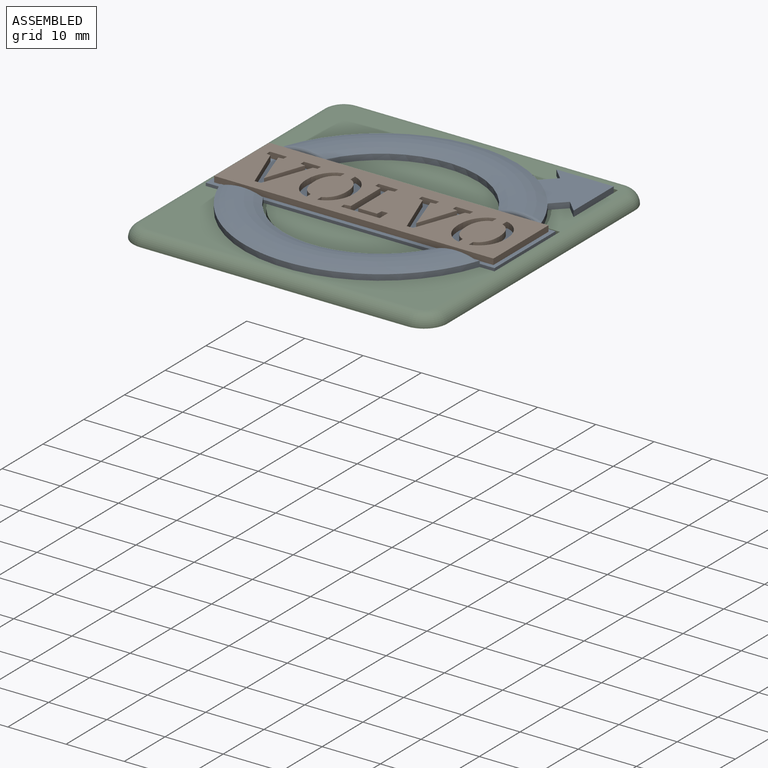
[diagram: assembled view]
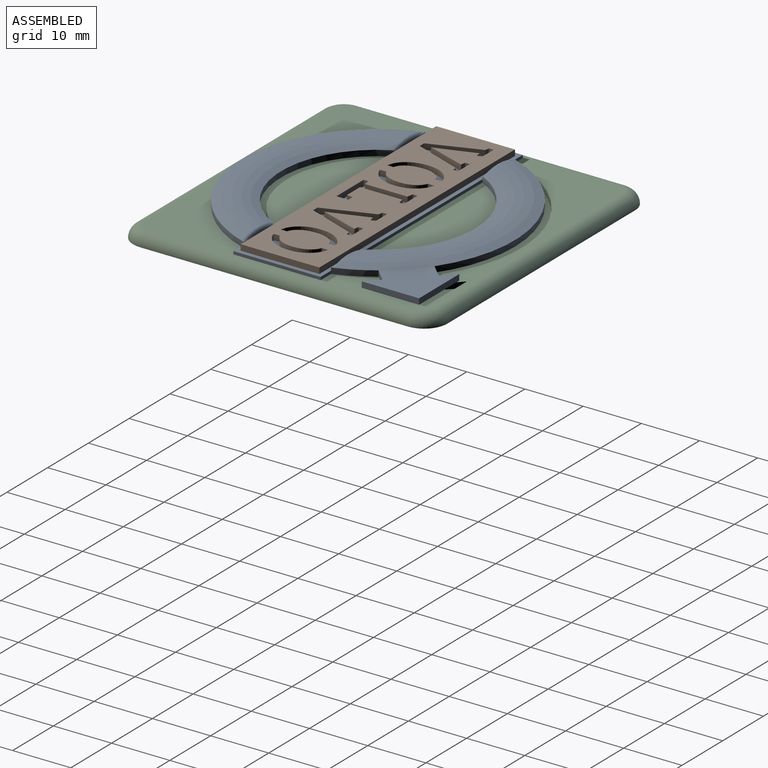
[diagram: assembled view, second angle]
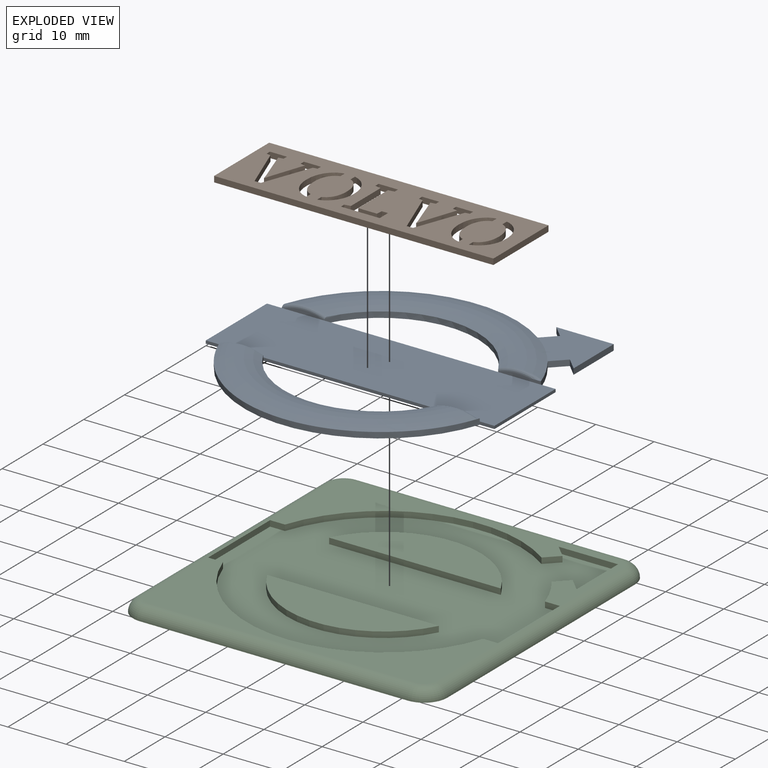
[diagram: exploded view]
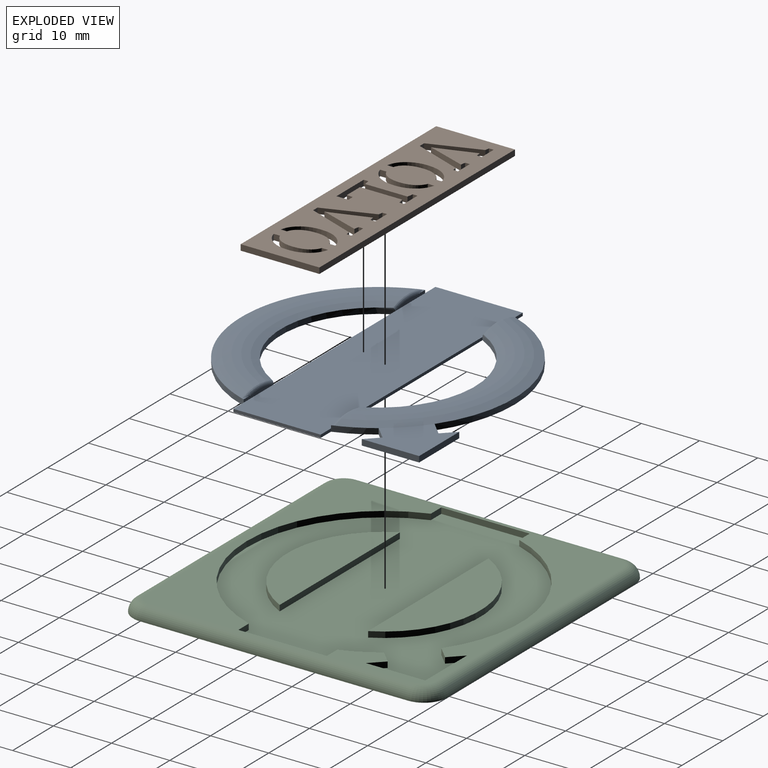
[diagram: exploded view, second angle]
ASSEMBLY  parts=3 mates=3
PART A: 35 faces, bbox 49.6x47.1x2.1 mm
  f0: plane 16.81x8.89mm, normal (0,0,-1), area 0.2mm2, adj f1,f16,f32
  f1: revolved ~44.13x20.02mm, area 324.1mm2, adj f0,f15,f16,f21,f31,f32
  f2: plane 44.56x16.02mm, normal (0,0,1), area 2mm2, adj f3,f4,f6,f30,f33,f34
  f3: plane 7.35x0.7mm, normal (0,1,0), area 3.9mm2, adj f2,f5,f6,f28,f33
  f4: plane 7.36x0.71mm, normal (0,1,0), area 3.9mm2, adj f2,f5,f6,f28,f34
  f5: cylinder r=16.7mm len=29.84mm, axis (0,0,-1), area 36.8mm2, adj f3,f4,f7,f9,f29,f33,f34
  f6: cylinder r=23.5mm len=44.54mm, axis (0,0,-1), area 58.6mm2, adj f2,f3,f4,f7,f8,f27
  f7: plane 49.6x47.06mm, normal (0,0,-1), area 1465.8mm2, adj f5,f6,f8,f9,f12,f13,f14,f15
  f8: plane 2.53x0.5mm, normal (0,-1,0), area 1.3mm2, adj f6,f7,f26,f28
  f9: plane 29.84x0.5mm, normal (0,-1,0), area 14.9mm2, adj f5,f7,f28
  f10: plane 7.07x0.7mm, normal (0,-1,0), area 3.4mm2, adj f16,f28,f31
  f11: plane 7.35x0.7mm, normal (0,-1,0), area 3.9mm2, adj f16,f17,f21,f28,f32
  f12: plane 9.86x1mm, normal (0,1,0), area 9.9mm2, adj f7,f13,f20,f21
  f13: plane 2.1x2.1mm, normal (-0.71,-0.71,0), area 3mm2, adj f7,f12,f14,f21
  f14: plane 2.26x2.26mm, normal (-0.71,0.71,0), area 3.2mm2, adj f7,f13,f15,f21
  f15: cylinder r=23.5mm len=35.82mm, axis (0,0,-1), area 43.5mm2, adj f1,f7,f14,f22,f31
  f16: cylinder r=16.7mm len=29.84mm, axis (0,0,-1), area 36.8mm2, adj f0,f1,f7,f10,f11,f23,f31,f32
  f17: cylinder r=23.5mm len=6.05mm, axis (0,0,-1), area 6.8mm2, adj f7,f11,f18,f21,f25
  f18: plane 2.25x2.25mm, normal (0.71,-0.71,0), area 3.2mm2, adj f7,f17,f19,f21
  f19: plane 2.1x2.1mm, normal (-0.71,-0.71,0), area 3mm2, adj f7,f18,f20,f21
  f20: plane 9.86x1mm, normal (1,0,0), area 9.9mm2, adj f7,f12,f19,f21
  f21: plane 16.06x10.02mm, normal (0,0,1), area 72.6mm2, adj f1,f11,f12,f13,f14,f17,f18,f19
  f22: plane 2.81x0.5mm, normal (0,1,0), area 1.3mm2, adj f7,f15,f26,f28,f31
  f23: plane 29.84x0.5mm, normal (0,1,0), area 14.9mm2, adj f7,f16,f28
  f24: plane 15x0.5mm, normal (1,0,0), area 7.5mm2, adj f7,f25,f27,f28
  f25: plane 2.54x0.5mm, normal (0,1,0), area 1.3mm2, adj f7,f17,f24,f28
  f26: plane 15x0.5mm, normal (-1,0,0), area 7.5mm2, adj f7,f8,f22,f28
  f27: plane 2.53x0.5mm, normal (0,-1,0), area 1.3mm2, adj f6,f7,f24,f28
  f28: plane 49.6x15mm, normal (0,0,1), area 744mm2, adj f3,f4,f8,f9,f10,f11,f22,f23
  f29: plane 29.54x8.92mm, normal (0,0,-1), area 1.1mm2, adj f5,f30,f33,f34
  f30: revolved ~44.1x20mm, area 323.6mm2, adj f2,f29,f33,f34
  f31: bspline ~9.85x1.87mm, area 5.9mm2, adj f1,f10,f15,f16,f22
  f32: bspline ~9.83x2.06mm, area 5.3mm2, adj f0,f1,f11,f16,f21
  f33: bspline ~9.12x1.57mm, area 5.3mm2, adj f2,f3,f5,f29,f30
  f34: bspline ~9.88x1.9mm, area 5.3mm2, adj f2,f4,f5,f29,f30
PART B: 104 faces, bbox 48x13.5x1 mm
  f0: plane 1.07x1mm, normal (-1,0,0), area 1.1mm2, adj f5,f78,f79,f99
  f1: plane 1.06x1mm, normal (-1,0,0), area 1.1mm2, adj f4,f78,f79,f100
  f2: plane 1.08x1mm, normal (1,0,0), area 1.1mm2, adj f41,f78,f79,f96
  f3: plane 1.07x1mm, normal (1,0,0), area 1.1mm2, adj f37,f78,f79,f95
  f4: extruded ~2.11x1.26mm, area 2.5mm2, adj f1,f38,f78,f79
  f5: extruded ~2.11x1.27mm, area 2.5mm2, adj f0,f40,f78,f79
  f6: extruded ~2.14x1.27mm, area 2.5mm2, adj f28,f78,f79,f80
  f7: extruded ~2.14x1.27mm, area 2.5mm2, adj f30,f78,f79,f82
  f8: plane 1x0.81mm, normal (-1,0,0), area 0.8mm2, adj f9,f77,f78,f79
  f9: plane 1x0.84mm, normal (-0.15,0.99,0), area 0.9mm2, adj f8,f10,f78,f79
  f10: plane 6.01x2.07mm, normal (-0.95,-0.33,0), area 6.4mm2, adj f9,f11,f78,f79
  f11: plane 1x0.73mm, normal (-0.96,-0.28,0), area 0.8mm2, adj f10,f12,f78,f79
  f12: plane 1x0.04mm, normal (0,-1,0), area 0mm2, adj f11,f13,f78,f79
  f13: plane 1x0.73mm, normal (0.96,-0.28,0), area 0.8mm2, adj f12,f14,f78,f79
  f14: plane 6.02x2.06mm, normal (0.95,-0.32,0), area 6.4mm2, adj f13,f15,f78,f79
  f15: plane 1x0.83mm, normal (0.15,0.99,0), area 0.8mm2, adj f14,f16,f78,f79
  f16: plane 1x0.81mm, normal (1,0,0), area 0.8mm2, adj f15,f17,f78,f79
  f17: plane 2.92x1mm, normal (0,-1,0), area 2.9mm2, adj f16,f18,f78,f79
  f18: plane 1x0.81mm, normal (-1,0,0), area 0.8mm2, adj f17,f19,f78,f79
  f19: plane 1x0.74mm, normal (-0.14,0.99,0), area 0.7mm2, adj f18,f20,f78,f79
  f20: plane 8.35x3.1mm, normal (-0.94,0.35,0), area 8.9mm2, adj f19,f21,f78,f79
  f21: plane 1.08x1mm, normal (0,1,0), area 1.1mm2, adj f20,f22,f78,f79
  f22: plane 8.35x3.1mm, normal (0.94,0.35,0), area 8.9mm2, adj f21,f23,f78,f79
  f23: plane 1x0.74mm, normal (0.14,0.99,0), area 0.7mm2, adj f22,f24,f78,f79
  f24: plane 1x0.81mm, normal (1,0,0), area 0.8mm2, adj f23,f77,f78,f79
  f25: plane 1x0.13mm, normal (-1,0,0), area 0.1mm2, adj f26,f72,f78,f79
  f26: extruded ~3.36x1.16mm, area 3.6mm2, adj f25,f27,f78,f79
  f27: extruded ~1.99x1.22mm, area 2.4mm2, adj f26,f78,f79,f81
  f28: extruded ~3.36x1.12mm, area 3.6mm2, adj f6,f29,f78,f79
  f29: plane 1x0.13mm, normal (1,0,0), area 0.1mm2, adj f28,f30,f78,f79
  f30: extruded ~3.36x1.12mm, area 3.6mm2, adj f7,f29,f78,f79
  f31: extruded ~1.99x1.23mm, area 2.4mm2, adj f72,f78,f79,f83
  f32: plane 13.53x1mm, normal (-1,0,0), area 13.5mm2, adj f33,f73,f78,f79
  f33: plane 47.99x1mm, normal (0,-1,0), area 48mm2, adj f32,f34,f78,f79
  f34: plane 13.53x1mm, normal (1,0,0), area 13.5mm2, adj f33,f73,f78,f79
  f35: plane 1x0.13mm, normal (-1,0,0), area 0.1mm2, adj f36,f74,f78,f79
  f36: extruded ~3.36x1.16mm, area 3.6mm2, adj f35,f37,f78,f79
  f37: extruded ~2.05x1.24mm, area 2.4mm2, adj f3,f36,f78,f79
  f38: extruded ~3.36x1.12mm, area 3.6mm2, adj f4,f39,f78,f79
  f39: plane 1x0.13mm, normal (1,0,0), area 0.1mm2, adj f38,f40,f78,f79
  f40: extruded ~3.36x1.12mm, area 3.6mm2, adj f5,f39,f78,f79
  f41: extruded ~2.05x1.24mm, area 2.4mm2, adj f2,f74,f78,f79
  f42: plane 1x0.81mm, normal (-1,0,0), area 0.8mm2, adj f43,f75,f78,f79
  f43: plane 1x0.84mm, normal (-0.15,0.99,0), area 0.9mm2, adj f42,f44,f78,f79
  f44: plane 6.01x2.07mm, normal (-0.95,-0.33,0), area 6.4mm2, adj f43,f45,f78,f79
  f45: plane 1x0.73mm, normal (-0.96,-0.28,0), area 0.8mm2, adj f44,f46,f78,f79
  f46: plane 1x0.04mm, normal (0,-1,0), area 0mm2, adj f45,f47,f78,f79
  f47: plane 1x0.73mm, normal (0.96,-0.28,0), area 0.8mm2, adj f46,f48,f78,f79
  f48: plane 6.02x2.06mm, normal (0.95,-0.32,0), area 6.4mm2, adj f47,f49,f78,f79
  f49: plane 1x0.83mm, normal (0.15,0.99,0), area 0.8mm2, adj f48,f50,f78,f79
  f50: plane 1x0.81mm, normal (1,0,0), area 0.8mm2, adj f49,f51,f78,f79
  f51: plane 2.92x1mm, normal (0,-1,0), area 2.9mm2, adj f50,f52,f78,f79
  f52: plane 1x0.81mm, normal (-1,0,0), area 0.8mm2, adj f51,f53,f78,f79
  f53: plane 1x0.74mm, normal (-0.14,0.99,0), area 0.7mm2, adj f52,f54,f78,f79
  f54: plane 8.35x3.1mm, normal (-0.94,0.35,0), area 8.9mm2, adj f53,f55,f78,f79
  f55: plane 1.08x1mm, normal (0,1,0), area 1.1mm2, adj f54,f56,f78,f79
  f56: plane 8.35x3.1mm, normal (0.94,0.35,0), area 8.9mm2, adj f55,f57,f78,f79
  f57: plane 1x0.74mm, normal (0.14,0.99,0), area 0.7mm2, adj f56,f58,f78,f79
  f58: plane 1x0.81mm, normal (1,0,0), area 0.8mm2, adj f57,f75,f78,f79
  f59: plane 6.67x1mm, normal (0,1,0), area 6.7mm2, adj f60,f76,f78,f79
  f60: plane 1x0.8mm, normal (1,0,0), area 0.8mm2, adj f59,f61,f78,f79
  f61: plane 1.04x1mm, normal (0.17,-0.99,0), area 1.1mm2, adj f60,f62,f78,f79
  f62: plane 7.29x1mm, normal (1,0,0), area 7.3mm2, adj f61,f63,f78,f79
  f63: plane 1.04x1mm, normal (0.17,0.99,0), area 1.1mm2, adj f62,f64,f78,f79
  f64: plane 1x0.81mm, normal (1,0,0), area 0.8mm2, adj f63,f65,f78,f79
  f65: plane 3.32x1mm, normal (0,-1,0), area 3.3mm2, adj f64,f66,f78,f79
  f66: plane 1x0.81mm, normal (-1,0,0), area 0.8mm2, adj f65,f67,f78,f79
  f67: plane 1.04x1mm, normal (-0.17,0.99,0), area 1.1mm2, adj f66,f68,f78,f79
  f68: plane 7.29x1mm, normal (-1,0,0), area 7.3mm2, adj f67,f69,f78,f79
  f69: plane 3.22x1mm, normal (0,-1,0), area 3.2mm2, adj f68,f70,f78,f79
  f70: plane 1.06x1mm, normal (1,-0.09,0), area 1.1mm2, adj f69,f71,f78,f79
  f71: plane 1.07x1mm, normal (0,-1,0), area 1.1mm2, adj f70,f76,f78,f79
  f72: extruded ~3.36x1.16mm, area 3.6mm2, adj f25,f31,f78,f79
  f73: plane 47.99x1mm, normal (0,1,0), area 48mm2, adj f32,f34,f78,f79
  f74: extruded ~3.36x1.16mm, area 3.6mm2, adj f35,f41,f78,f79
  f75: plane 2.92x1mm, normal (0,-1,0), area 2.9mm2, adj f42,f58,f78,f79
  f76: plane 2.04x1mm, normal (-1,0,0), area 2mm2, adj f59,f71,f78,f79
  f77: plane 2.92x1mm, normal (0,-1,0), area 2.9mm2, adj f8,f24,f78,f79
  f78: plane 47.99x13.53mm, normal (0,0,1), area 531.7mm2, adj f0,f1,f2,f3,f4,f5,f6,f7
  f79: plane 47.99x13.53mm, normal (0,0,-1), area 531.7mm2, adj f0,f1,f2,f3,f4,f5,f6,f7
  f80: plane 1.06x1mm, normal (-1,0,0), area 1.1mm2, adj f6,f78,f79,f85
  f81: plane 1.08x1mm, normal (1,0,0), area 1.1mm2, adj f27,f78,f79,f92
  f82: plane 1.07x1mm, normal (-1,0,0), area 1.1mm2, adj f7,f78,f79,f84
  f83: plane 1.09x1mm, normal (1,0,0), area 1.1mm2, adj f31,f78,f79,f88
  f84: extruded ~1.27x1mm, area 1.6mm2, adj f78,f79,f82,f89
  f85: extruded ~1.27x1mm, area 1.6mm2, adj f78,f79,f80,f91
  f86: plane 1x0.15mm, normal (1,0,0), area 0.1mm2, adj f78,f79,f87,f93
  f87: extruded ~2.63x1mm, area 2.8mm2, adj f78,f79,f86,f88
  f88: extruded ~1.12x1mm, area 1.4mm2, adj f78,f79,f83,f87
  f89: extruded ~2.63x1mm, area 2.8mm2, adj f78,f79,f84,f90
  f90: plane 1x0.15mm, normal (-1,0,0), area 0.1mm2, adj f78,f79,f89,f91
  f91: extruded ~2.65x1mm, area 2.8mm2, adj f78,f79,f85,f90
  f92: extruded ~1.13x1mm, area 1.4mm2, adj f78,f79,f81,f93
  f93: extruded ~2.65x1mm, area 2.8mm2, adj f78,f79,f86,f92
  f94: extruded ~2.65x1mm, area 2.8mm2, adj f78,f79,f95,f98
  f95: extruded ~1.19x1mm, area 1.5mm2, adj f3,f78,f79,f94
  f96: extruded ~1.19x1mm, area 1.5mm2, adj f2,f78,f79,f97
  f97: extruded ~2.63x1mm, area 2.8mm2, adj f78,f79,f96,f98
  f98: plane 1x0.15mm, normal (1,0,0), area 0.1mm2, adj f78,f79,f94,f97
  f99: extruded ~1.24x1mm, area 1.6mm2, adj f0,f78,f79,f101
  f100: extruded ~1.24x1mm, area 1.6mm2, adj f1,f78,f79,f103
  f101: extruded ~2.63x1mm, area 2.8mm2, adj f78,f79,f99,f102
  f102: plane 1x0.15mm, normal (-1,0,0), area 0.1mm2, adj f78,f79,f101,f103
  f103: extruded ~2.65x1mm, area 2.8mm2, adj f78,f79,f100,f102
PART C: 32 faces, bbox 54.7x54.7x2 mm
  f0: plane 50x50mm, normal (0,0,1), area 620mm2, adj f1,f2,f6,f7,f8,f9,f10,f11
  f1: cylinder r=23.6mm len=44.69mm, axis (0,0,1), area 58.7mm2, adj f0,f14,f19,f21
  f2: cylinder r=23.6mm len=35.88mm, axis (0,0,1), area 43.7mm2, adj f0,f8,f14,f22
  f3: cylinder r=16.6mm len=29.52mm, axis (0,0,1), area 36.4mm2, adj f4,f14,f16
  f4: plane 29.52x9mm, normal (0,0,1), area 189.6mm2, adj f3,f16
  f5: plane 54x54mm, normal (0,0,-1), area 2902.3mm2, adj f24,f25,f26,f27,f28,f29,f30,f31
  f6: plane 10.2x1mm, normal (0,-1,0), area 10.2mm2, adj f0,f7,f13,f14
  f7: plane 2.2x2.2mm, normal (0.71,0.71,0), area 3.1mm2, adj f0,f6,f8,f14
  f8: plane 2.12x2.12mm, normal (0.71,-0.71,0), area 3mm2, adj f0,f2,f7,f14
  f9: cylinder r=23.6mm len=5.94mm, axis (0,0,1), area 6.7mm2, adj f0,f10,f14,f18
  f10: plane 2.12x2.12mm, normal (-0.71,0.71,0), area 3mm2, adj f0,f9,f11,f14
  f11: plane 2.2x2.2mm, normal (0.71,0.71,0), area 3.1mm2, adj f0,f10,f13,f14
  f12: cylinder r=16.6mm len=29.52mm, axis (0,0,1), area 36.4mm2, adj f14,f15,f17
  f13: plane 10.2x1mm, normal (-1,0,0), area 10.2mm2, adj f0,f6,f11,f14
  f14: plane 49.8x47.26mm, normal (0,0,1), area 1497.2mm2, adj f1,f2,f3,f6,f7,f8,f9,f10
  f15: plane 29.52x9mm, normal (0,0,1), area 189.6mm2, adj f12,f17
  f16: plane 29.52x1mm, normal (0,1,0), area 29.5mm2, adj f3,f4,f14
  f17: plane 29.52x1mm, normal (0,-1,0), area 29.5mm2, adj f12,f14,f15
  f18: plane 2.56x1mm, normal (0,-1,0), area 2.6mm2, adj f0,f9,f14,f20
  f19: plane 2.56x1mm, normal (0,1,0), area 2.6mm2, adj f0,f1,f14,f20
  f20: plane 15.2x1mm, normal (-1,0,0), area 15.2mm2, adj f0,f14,f18,f19
  f21: plane 2.56x1mm, normal (0,1,0), area 2.6mm2, adj f0,f1,f14,f23
  f22: plane 2.56x1mm, normal (0,-1,0), area 2.6mm2, adj f0,f2,f14,f23
  f23: plane 15.2x1mm, normal (1,0,0), area 15.2mm2, adj f0,f14,f21,f22
  f24: cylinder r=2mm len=46mm, axis (0,1,0), area 144.5mm2, adj f0,f5,f25,f26
  f25: torus R=2mm, axis (0,0,1), area 16.2mm2, adj f0,f5,f24,f27
  f26: torus R=2mm, axis (0,0,1), area 16.2mm2, adj f0,f5,f24,f28
  f27: cylinder r=2mm len=46mm, axis (1,0,0), area 144.5mm2, adj f0,f5,f25,f29
  f28: cylinder r=2mm len=46mm, axis (-1,0,0), area 144.5mm2, adj f0,f5,f26,f30
  f29: torus R=2mm, axis (0,0,1), area 16.2mm2, adj f0,f5,f27,f31
  f30: torus R=2mm, axis (0,0,1), area 16.2mm2, adj f0,f5,f28,f31
  f31: cylinder r=2mm len=46mm, axis (0,-1,0), area 144.5mm2, adj f0,f5,f29,f30
PLACE A t=(-10.4,-6.5,-19.86)mm
PLACE B t=(-10.28,-6.37,-19.86)mm
PLACE C t=(-10.5,-5.54,-20.86)mm
MATE planar A.f7 <-> C.f3  axis (0,0,-1) through (-9.44,-5.54,-18.86)mm
MATE planar A.f24 <-> C.f20  axis (1,0,0) through (14.4,-6.5,-18.61)mm
MATE planar B.f79 <-> A.f5  axis (0,0,-1) through (0.11,-7.2,-18.36)mm
